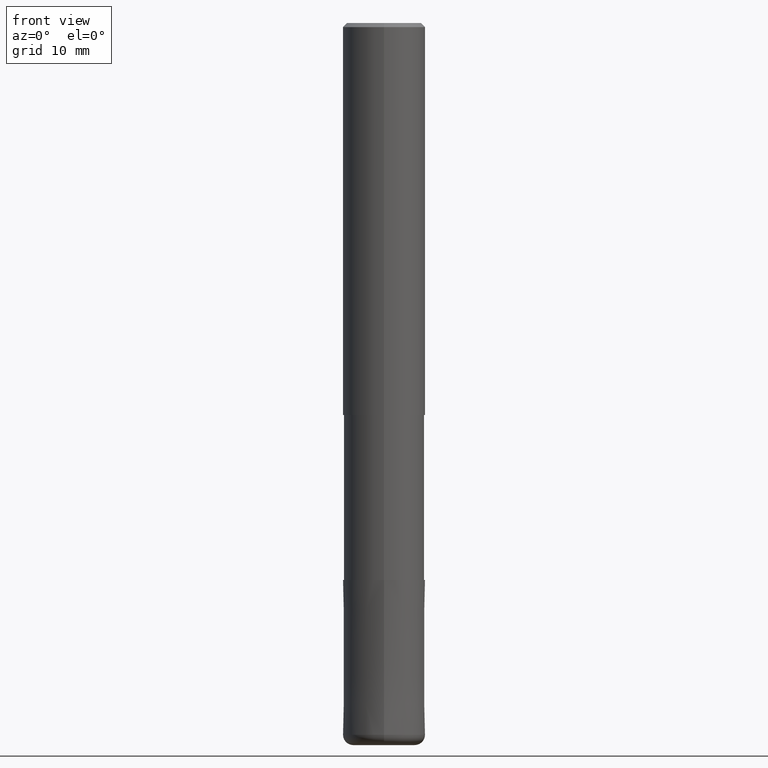
[diagram: clean part render]
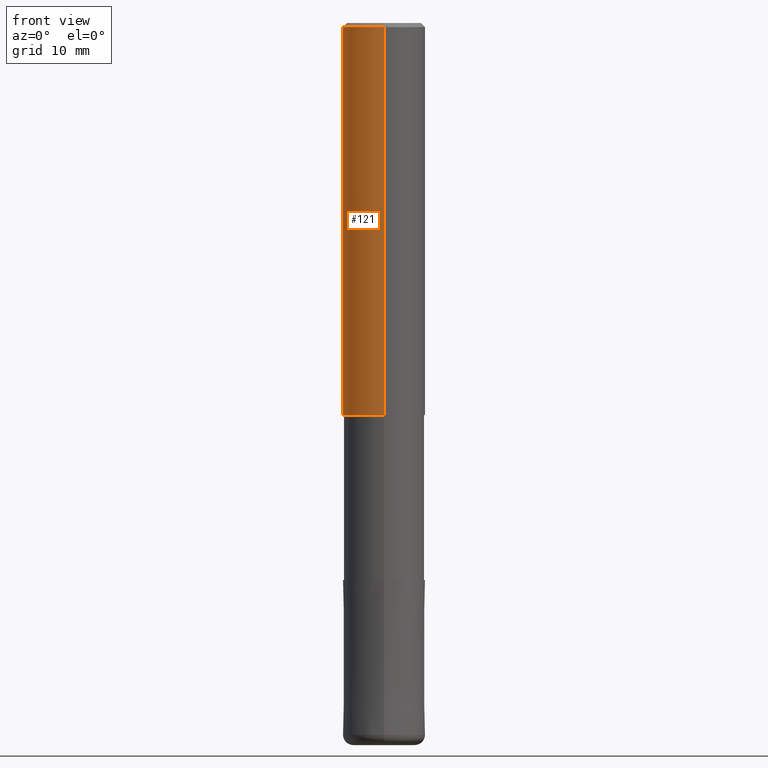
[diagram: same view with one face highlighted and labeled with its STEP entity id]
A machine part, front view. The second image highlights one B-rep face of the part: STEP entity #121.
In plain terms, the highlighted cylindrical surface (partial cylindrical patch) has radius 4 mm, axis along (-0, -0, 1).
Its self-contained STEP definition (entity closure, byte-faithful):
#121=ADVANCED_FACE('',(#308),#309,.T.);
#161=VERTEX_POINT('',#352);
#183=VERTEX_POINT('',#379);
#213=VERTEX_POINT('',#411);
#219=EDGE_CURVE('',#161,#243,#418,.T.);
#243=VERTEX_POINT('',#449);
#253=EDGE_CURVE('',#161,#183,#462,.T.);
#263=EDGE_CURVE('',#213,#183,#472,.T.);
#281=EDGE_CURVE('',#243,#213,#492,.T.);
#308=FACE_OUTER_BOUND('',#510,.T.);
#309=CYLINDRICAL_SURFACE('',#511,4.0);
#352=CARTESIAN_POINT('',(4.89842541528951E-016,-4.0,-38.0));
#379=CARTESIAN_POINT('',(0.0,4.0,-38.0));
#411=CARTESIAN_POINT('',(0.0,4.0,-0.399999999999999));
#418=LINE('',#647,#648);
#449=CARTESIAN_POINT('',(4.89842541528951E-016,-4.0,-0.399999999999999));
#462=CIRCLE('',#699,4.0);
#472=LINE('',#715,#716);
#492=CIRCLE('',#743,4.0);
#510=EDGE_LOOP('',(#749,#750,#751,#752));
#511=AXIS2_PLACEMENT_3D('',#753,#754,#755);
#647=CARTESIAN_POINT('',(4.89842541528951E-016,-4.0,-19.2));
#648=VECTOR('',#886,1.0);
#699=AXIS2_PLACEMENT_3D('',#954,#955,#956);
#715=CARTESIAN_POINT('',(-4.89842541528951E-016,4.0,-19.2));
#716=VECTOR('',#962,1.0);
#743=AXIS2_PLACEMENT_3D('',#992,#993,#994);
#749=ORIENTED_EDGE('',*,*,#263,.T.);
#750=ORIENTED_EDGE('',*,*,#253,.F.);
#751=ORIENTED_EDGE('',*,*,#219,.T.);
#752=ORIENTED_EDGE('',*,*,#281,.T.);
#753=CARTESIAN_POINT('',(0.0,0.0,-19.2));
#754=DIRECTION('',(-0.0,-0.0,1.0));
#755=DIRECTION('',(0.0,1.0,0.0));
#886=DIRECTION('',(-0.0,-0.0,1.0));
#954=CARTESIAN_POINT('',(0.0,0.0,-38.0));
#955=DIRECTION('',(0.0,0.0,-1.0));
#956=DIRECTION('',(0.0,1.0,0.0));
#962=DIRECTION('',(0.0,0.0,-1.0));
#992=CARTESIAN_POINT('',(0.0,0.0,-0.399999999999999));
#993=DIRECTION('',(0.0,0.0,-1.0));
#994=DIRECTION('',(0.0,1.0,0.0));